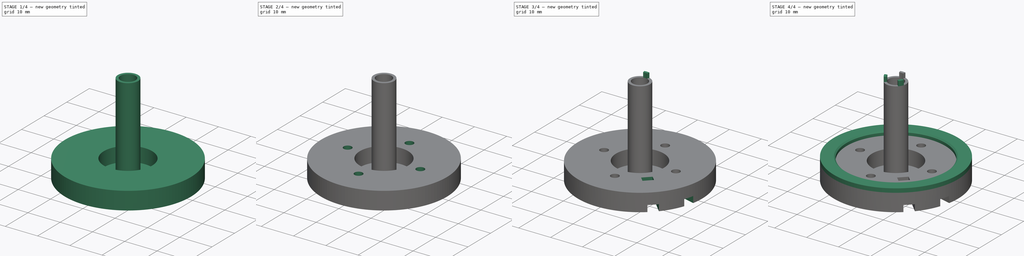
[diagram: build sequence overview — one tinted view per stage of 4, left to right]
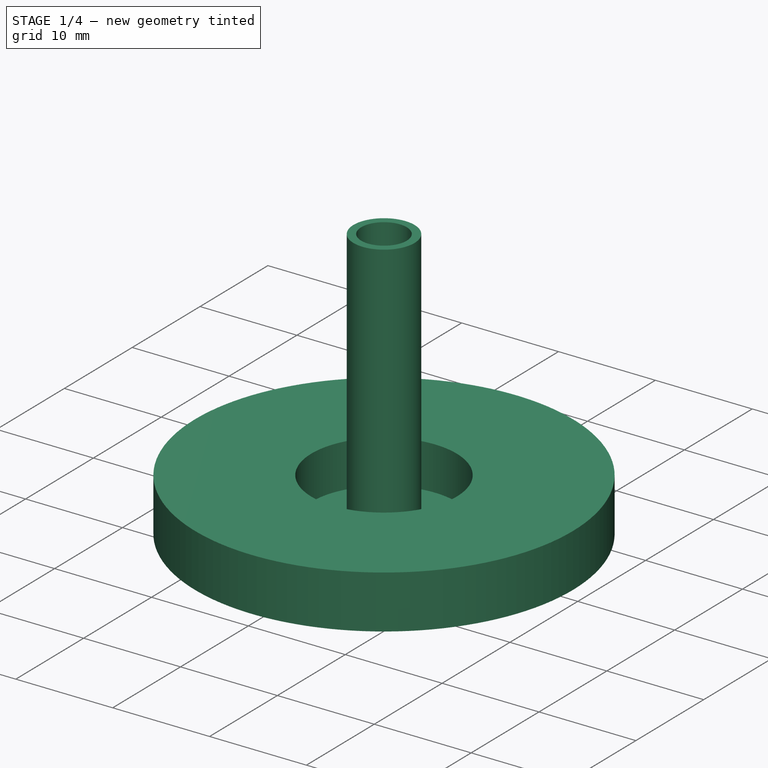
[diagram: stage 1 of 4 — iso view after this stage's code; geometry added in this stage tinted green]
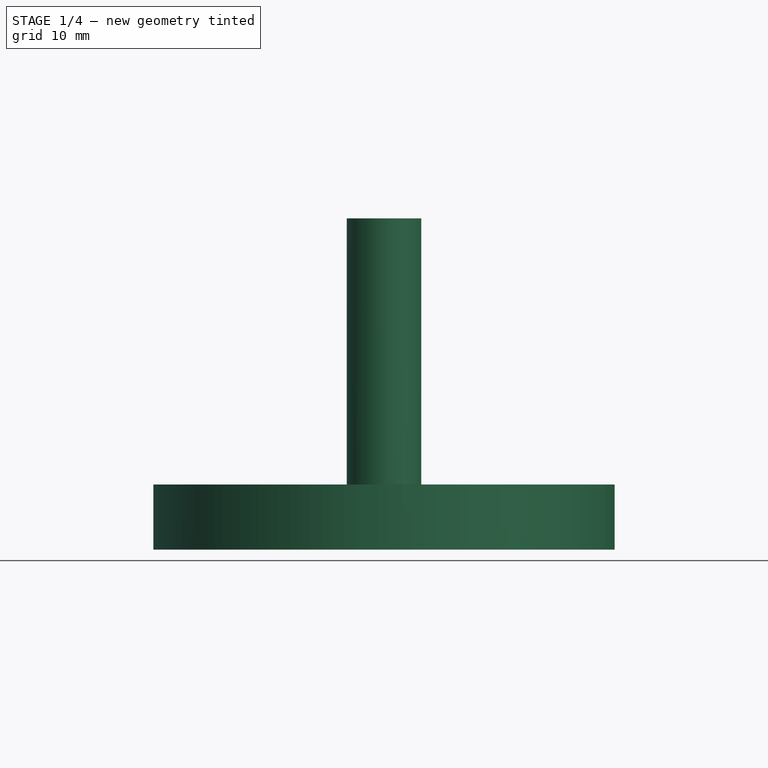
[diagram: stage 1 of 4 — front view after this stage's code; geometry added in this stage tinted green]
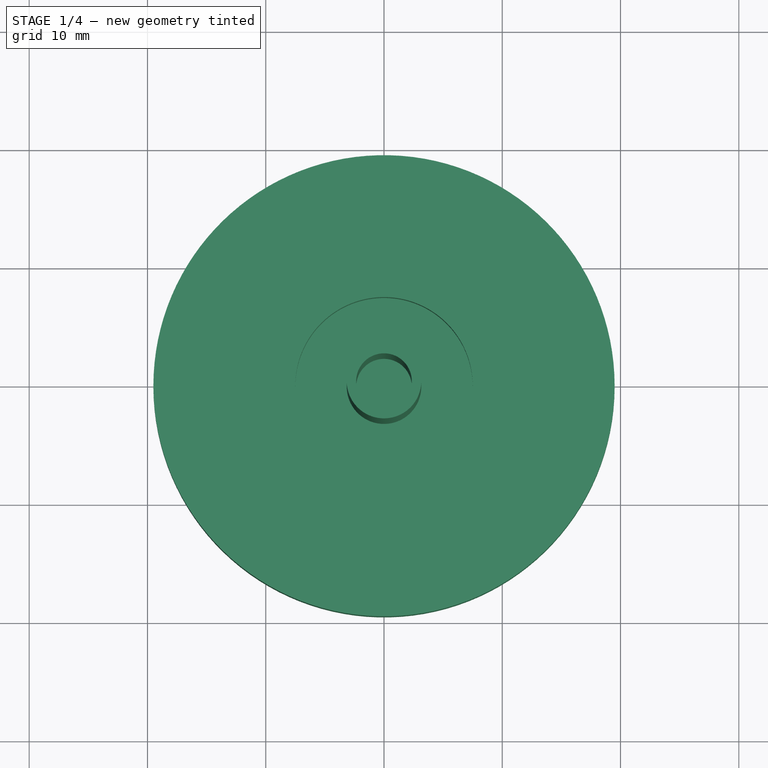
[diagram: stage 1 of 4 — top view after this stage's code; geometry added in this stage tinted green]
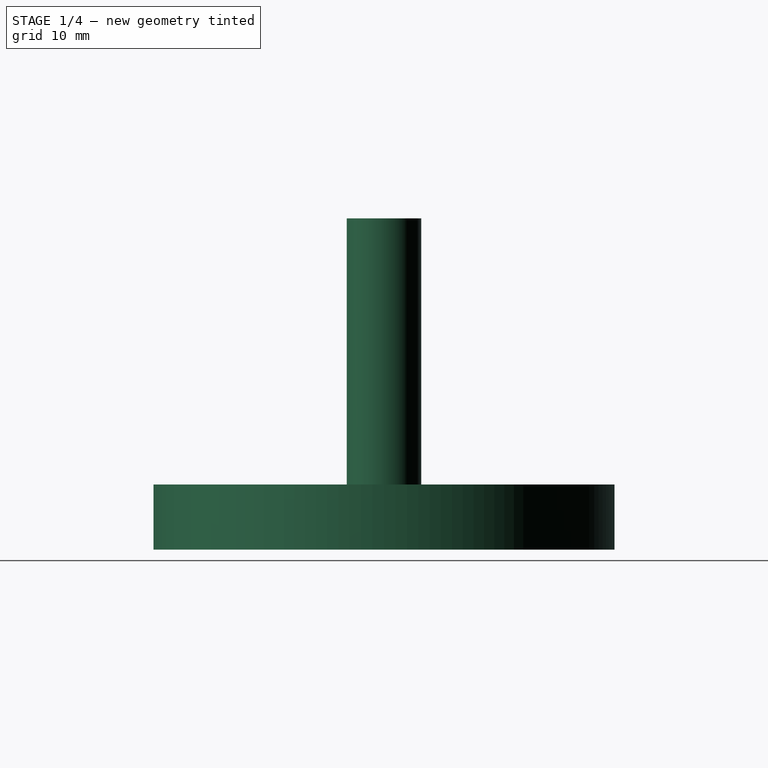
[diagram: stage 1 of 4 — right view after this stage's code; geometry added in this stage tinted green]
FCSTD DOCUMENT  (FreeCAD 0.20R29603 (Git))
Label: motor_base
License: All rights reserved
LicenseURL: http://en.wikipedia.org/wiki/All_rights_reserved
objects: Sketcher::SketchObject×8, PartDesign::Pocket×5, PartDesign::Pad×4, PartDesign::PolarPattern×2, PartDesign::Chamfer×1, PartDesign::Body×1
note: 31 computed .brp shape members not serialized (recipe doc carries the construction recipe); baked Part::Feature solids carry a one-line shape summary decoded from their .brp

FEATURE [Sketcher::SketchObject] Sketch
  FullyConstrained = true
  MapMode = 5
  Support = -> [XY_Plane]
  sketch-geometry (1):
    g0: Circle CenterX=0 CenterY=0 CenterZ=0 NormalX=0 NormalY=0 NormalZ=1 AngleXU=0 Radius=19.5
  constraints (2):
    c: Coincident(g0,g-1)
    c: Diameter(g0) = 39
FEATURE [PartDesign::Pad] Pad
  Direction = (0,0,1)
  Length = 5.5
  Length2 = 10
  Profile = -> Sketch
  ReferenceAxis = -> Sketch [N_Axis]
  Type = 0
FEATURE [Sketcher::SketchObject] Sketch001
  FullyConstrained = true
  MapMode = 5
  Placement = pos=(0,0,5.5) rot=(0,0,1;0rad)
  Support = -> [Pad]
  sketch-geometry (1):
    g0: Circle CenterX=0 CenterY=0 CenterZ=0 NormalX=0 NormalY=0 NormalZ=1 AngleXU=0 Radius=7.5
  constraints (2):
    c: Coincident(g0,g-1)
    c: Diameter(g0) = 15
FEATURE [PartDesign::Pocket] Pocket  label="磁铁槽"
  BaseFeature = -> Pad
  Direction = (0,0,-1)
  Length = 4.5
  Length2 = 5
  Profile = -> Sketch001
  ReferenceAxis = -> Sketch001 [N_Axis]
  Type = 0
FEATURE [Sketcher::SketchObject] Sketch002
  FullyConstrained = true
  MapMode = 5
  Placement = pos=(0,0,1) rot=(0,0,1;0rad)
  Support = -> [Pocket]
  sketch-geometry (4):
    g0: Circle CenterX=0 CenterY=0 CenterZ=0 NormalX=0 NormalY=0 NormalZ=1 AngleXU=0 Radius=3.15
    g1: Circle CenterX=0 CenterY=0 CenterZ=0 NormalX=0 NormalY=0 NormalZ=1 AngleXU=0 Radius=2.35
    g2: GeomPoint X=0 Y=3.15 Z=0
    g3: GeomPoint X=0 Y=2.35 Z=0
  constraints (9):
    c: Coincident(g0,g-1)
    c: Coincident(g1,g0)
    c: Diameter(g0) = 6.3
    c: PointOnObject(g2,g0)
    c: PointOnObject(g3,g1)
    c: PointOnObject(g2,g-2)
    c: PointOnObject(g3,g-2)
    c: Distance(g2,g3) = 0.8
    c: Diameter(g1) = 4.7
FEATURE [PartDesign::Pad] Pad001  label="通孔柱"
  BaseFeature = -> Pocket
  Direction = (0,0,1)
  Length = 27
  Length2 = 10
  Profile = -> Sketch002
  ReferenceAxis = -> Sketch002 [N_Axis]
  Type = 0
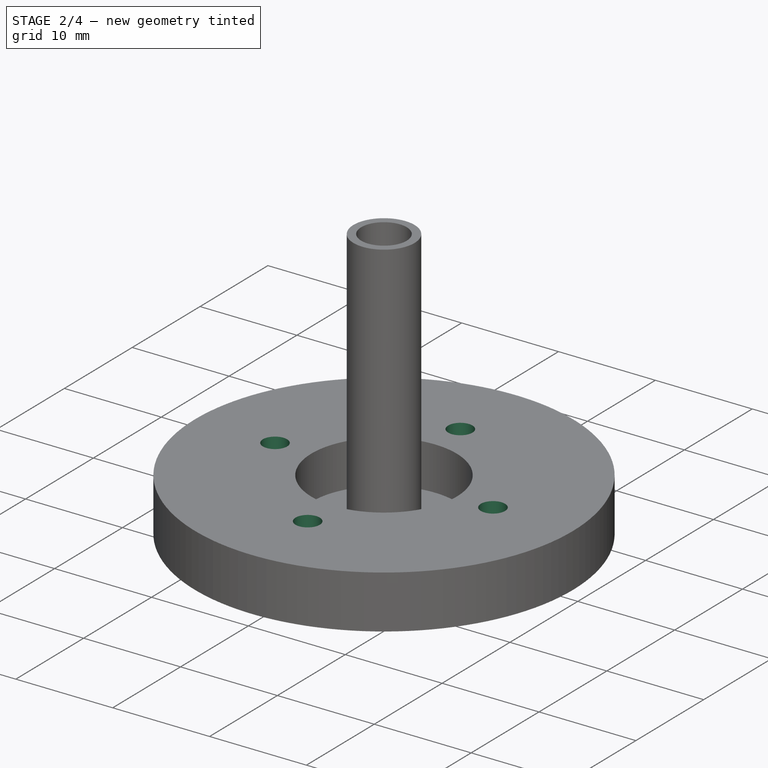
[diagram: stage 2 of 4 — iso view after this stage's code; geometry added in this stage tinted green]
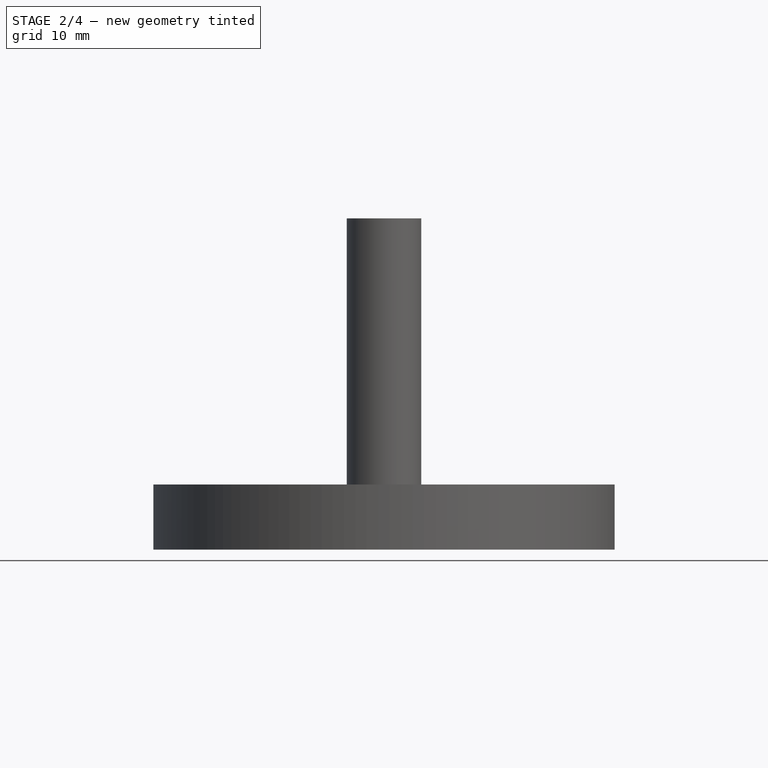
[diagram: stage 2 of 4 — front view after this stage's code; geometry added in this stage tinted green]
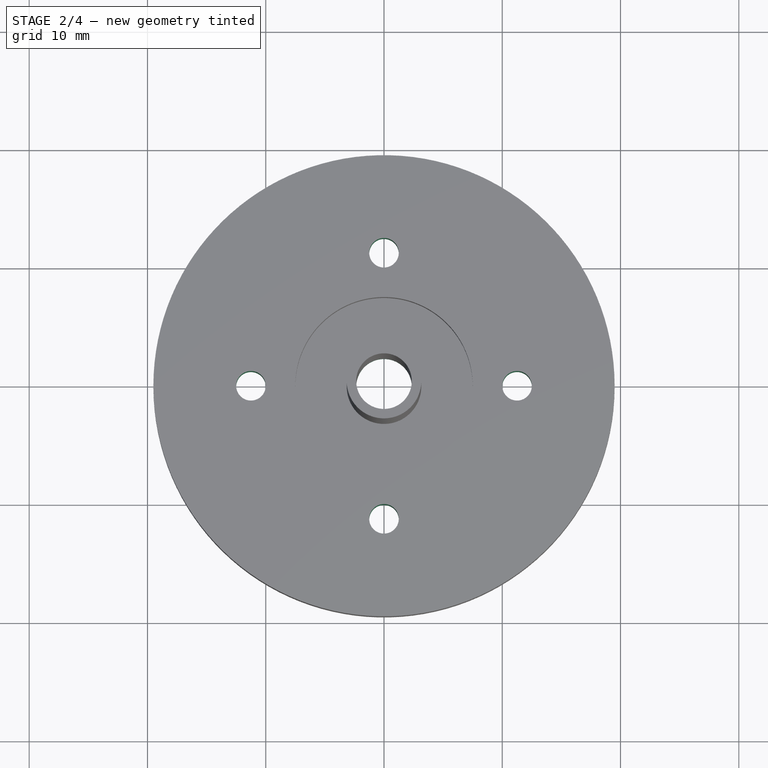
[diagram: stage 2 of 4 — top view after this stage's code; geometry added in this stage tinted green]
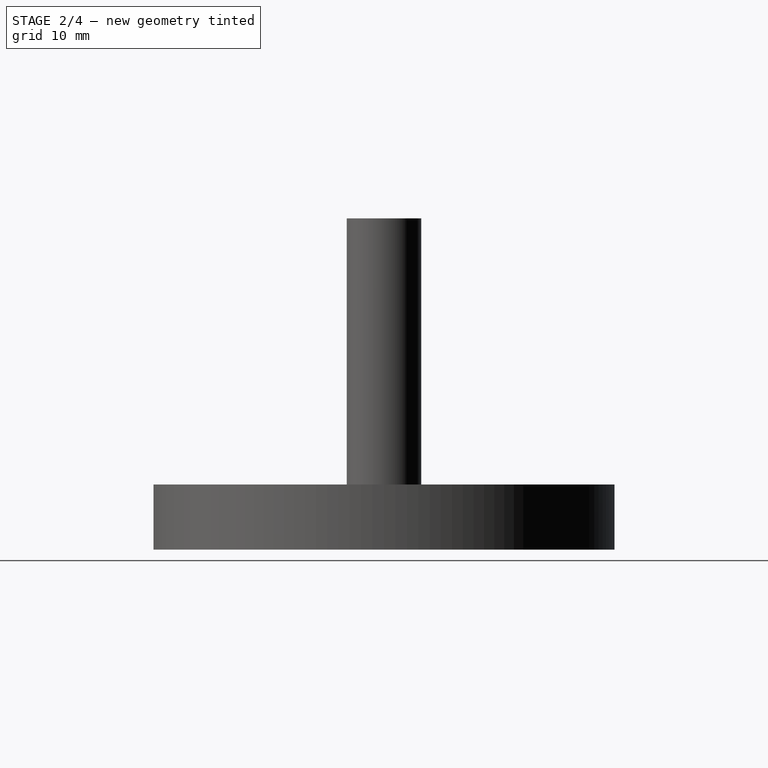
[diagram: stage 2 of 4 — right view after this stage's code; geometry added in this stage tinted green]
FEATURE [Sketcher::SketchObject] Sketch003
  FullyConstrained = true
  MapMode = 5
  Placement = pos=(0,0,0) rot=(1,0,0;3.14159rad)
  Support = -> [Pad001]
  sketch-geometry (1):
    g0: Circle CenterX=0 CenterY=11.25 CenterZ=0 NormalX=0 NormalY=0 NormalZ=1 AngleXU=0 Radius=1.25
  constraints (3):
    c: PointOnObject(g0,g-2)
    c: Diameter(g0) = 2.5
    c: Distance(g0,g-1) = 11.25
FEATURE [PartDesign::Pocket] Pocket001
  BaseFeature = -> Pad001
  Direction = (0,0,1)
  Length = 5
  Length2 = 5
  Profile = -> Sketch003
  ReferenceAxis = -> Sketch003 [N_Axis]
  Type = 1
FEATURE [PartDesign::PolarPattern] PolarPattern
  Angle = 360
  Axis = -> Sketch003 [N_Axis]
  BaseFeature = -> Pocket001
  Occurrences = 4
  Originals = -> [Pocket001]
FEATURE [PartDesign::Pocket] Pocket002
  BaseFeature = -> PolarPattern
  Direction = (0,0,-1)
  Length = 0
  Length2 = 5
  Profile = -> PolarPattern [Edge24]
  Type = 1
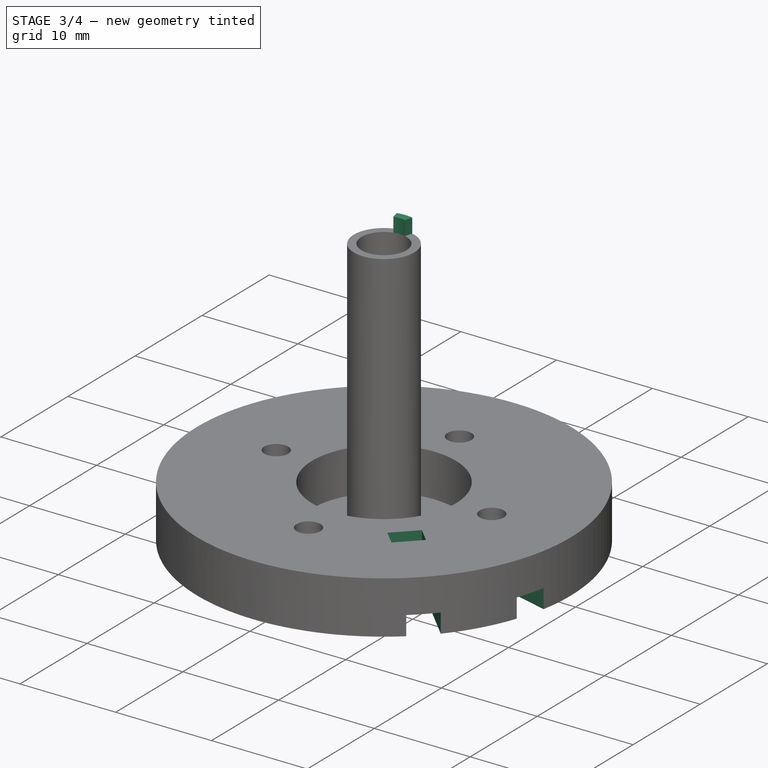
[diagram: stage 3 of 4 — iso view after this stage's code; geometry added in this stage tinted green]
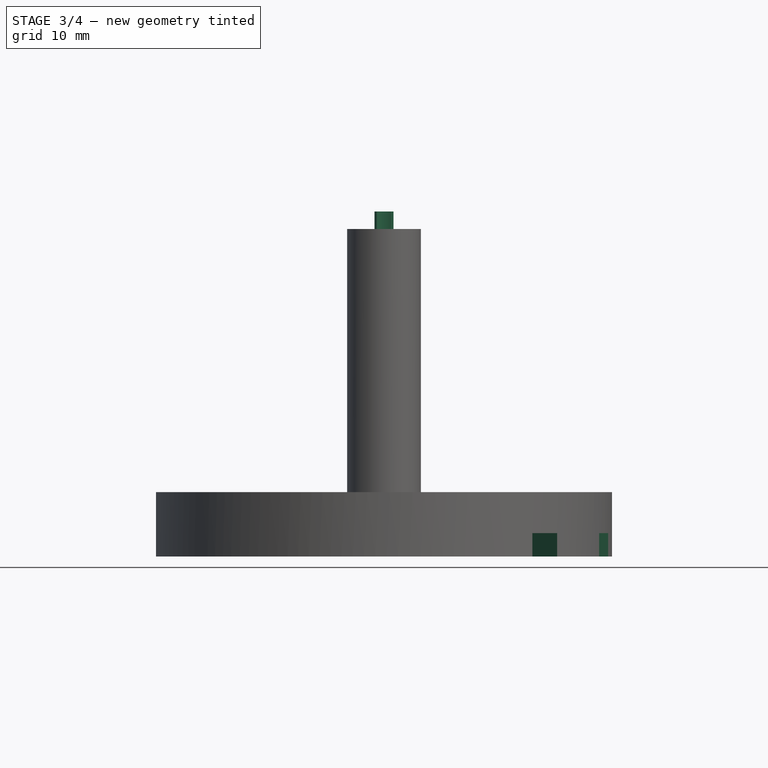
[diagram: stage 3 of 4 — front view after this stage's code; geometry added in this stage tinted green]
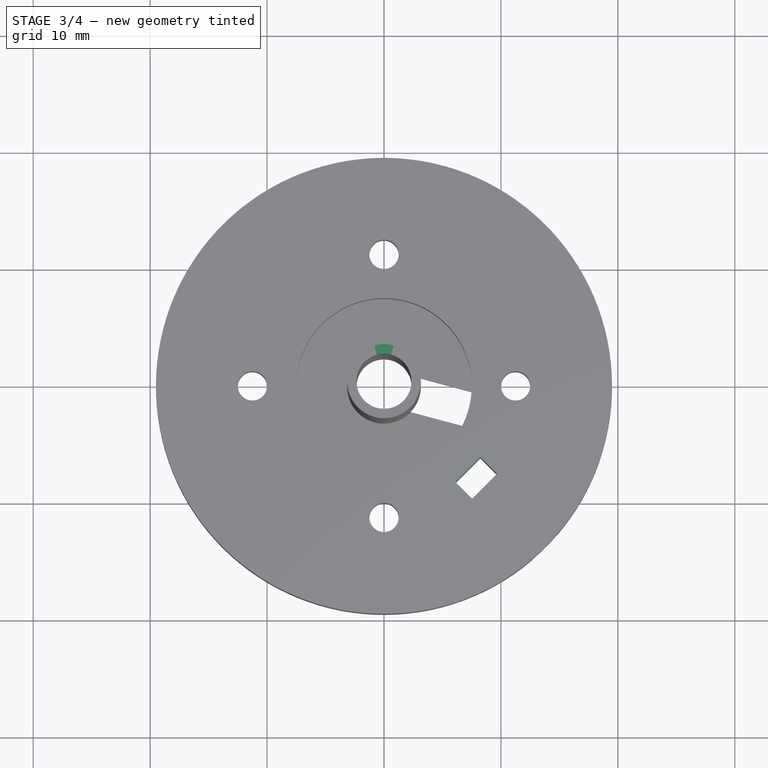
[diagram: stage 3 of 4 — top view after this stage's code; geometry added in this stage tinted green]
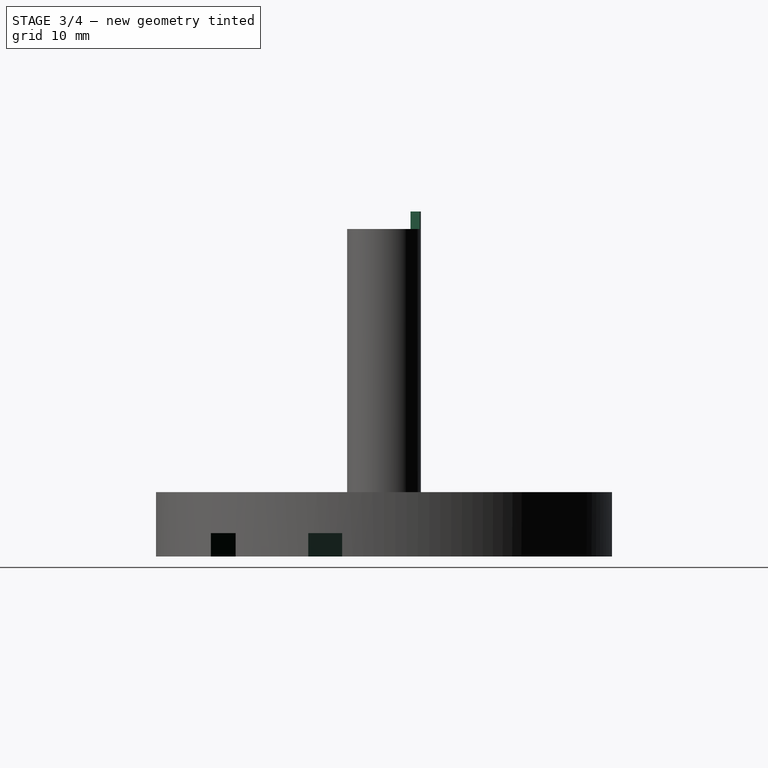
[diagram: stage 3 of 4 — right view after this stage's code; geometry added in this stage tinted green]
FEATURE [Sketcher::SketchObject] Sketch004
  FullyConstrained = false
  MapMode = 5
  Placement = pos=(0,0,0) rot=(1,0,0;3.14159rad)
  Support = -> [Pocket002]
  sketch-geometry (6):
    g0: LineSegment StartX=0 StartY=0 StartZ=0 EndX=16.3031 EndY=16.3031 EndZ=0
    g1: LineSegment StartX=6.11647 StartY=8.23779 StartZ=0 EndX=8.23779 EndY=6.11647 EndZ=0
    g2: LineSegment StartX=6.11647 StartY=8.23779 StartZ=0 EndX=7.53069 EndY=9.65201 EndZ=0
    g3: LineSegment StartX=7.53069 StartY=9.65201 StartZ=0 EndX=9.65201 EndY=7.53069 EndZ=0
    g4: LineSegment StartX=9.65201 StartY=7.53069 StartZ=0 EndX=8.23779 EndY=6.11647 EndZ=0
    g5: LineSegment StartX=6.82358 StartY=8.9449 StartZ=0 EndX=8.9449 EndY=6.82358 EndZ=0
  constraints (16):
    c: Coincident(g0,g-1)
    c: Angle(g-1,g0) = 0.785398
    c: Perpendicular(g0,g1)
    c: Coincident(g2,g1)
    c: Coincident(g3,g2)
    c: Coincident(g4,g3)
    c: Coincident(g4,g1)
    c: Parallel(g2,g4)
    c: Parallel(g4,g0)
    c: Symmetric(g3,g2,g0)
    c: PointOnObject(g5,g2)
    c: PointOnObject(g5,g4)
    c: Symmetric(g2,g1,g5)
    c: Distance(g4) = 2
    c: Distance(g1) = 3
    c: Distance(g0,g5) = 11.15
FEATURE [PartDesign::Pocket] Pocket003
  BaseFeature = -> Pocket002
  Direction = (0,0,1)
  Length = 0
  Length2 = 5
  Profile = -> Sketch004
  ReferenceAxis = -> Sketch004 [N_Axis]
  Type = 3
  UpToFace = -> Pocket002 [Face3]
FEATURE [Sketcher::SketchObject] Sketch005
  ExternalGeometry = -> [Pocket003]
  FullyConstrained = true
  MapMode = 5
  Placement = pos=(0,0,0) rot=(1,0,0;3.14159rad)
  Support = -> [Pocket003]
  sketch-geometry (9):
    g0: LineSegment StartX=0 StartY=0 StartZ=0 EndX=18.8356 EndY=5.04697 EndZ=0
    g1: LineSegment StartX=2.13559 StartY=-0.980684 StartZ=0 EndX=19.2238 EndY=3.59808 EndZ=0
    g2: LineSegment StartX=18.4473 StartY=6.49586 StartZ=0 EndX=1.35914 EndY=1.91709 EndZ=0
    g3: LineSegment StartX=1.35914 StartY=1.91709 StartZ=0 EndX=2.13559 EndY=-0.980684 EndZ=0
    g4: LineSegment StartX=18.4473 StartY=6.49586 StartZ=0 EndX=19.2238 EndY=3.59808 EndZ=0
    g5: LineSegment StartX=6.11647 StartY=8.23779 StartZ=0 EndX=12.7279 EndY=14.8492 EndZ=0
    g6: LineSegment StartX=8.23779 StartY=6.11647 StartZ=0 EndX=14.8492 EndY=12.7279 EndZ=0
    g7: LineSegment StartX=12.7279 StartY=14.8492 StartZ=0 EndX=14.8492 EndY=12.7279 EndZ=0
    g8: LineSegment StartX=6.11647 StartY=8.23779 StartZ=0 EndX=8.23779 EndY=6.11647 EndZ=0
  constraints (23):
    c: Coincident(g0,g-1)
    c: Angle(g0,g-1) = -0.261799
    c: Parallel(g2,g1)
    c: Symmetric(g2,g1,g0)
    c: Coincident(g3,g2)
    c: Coincident(g3,g1)
    c: Coincident(g4,g2)
    c: Coincident(g4,g1)
    c: Symmetric(g2,g1,g0)
    c: Distance(g3) = 3
    c: PointOnObject(g0,g4)
    c: PointOnObject(g0,g-3)
    c: Coincident(g5,g-4)
    c: Coincident(g6,g-4)
    c: Coincident(g7,g5)
    c: Coincident(g7,g6)
    c: Perpendicular(g-4,g6)
    c: Perpendicular(g-4,g5)
    c: Parallel(g7,g-4)
    c: Coincident(g8,g5)
    c: Coincident(g8,g6)
    c: Tangent(g7,g-3)
    c: PointOnObject(g2,g-5)
FEATURE [PartDesign::Pocket] Pocket004
  BaseFeature = -> Pocket003
  Direction = (0,0,1)
  Length = 2
  Length2 = 5
  Profile = -> Sketch005
  ReferenceAxis = -> Sketch005 [N_Axis]
  Type = 0
FEATURE [Sketcher::SketchObject] Sketch006
  ExternalGeometry = -> [Pocket004]
  FullyConstrained = true
  Placement = pos=(0,0,28) rot=(0,0,1;0rad)
  Support = -> [Sketch002]
  sketch-geometry (6):
    g0: ArcOfCircle CenterX=0 CenterY=0 CenterZ=0 NormalX=0 NormalY=0 NormalZ=1 AngleXU=0 Radius=2.35 StartAngle=1.309 EndAngle=1.8326
    g1: ArcOfCircle CenterX=0 CenterY=0 CenterZ=0 NormalX=0 NormalY=0 NormalZ=1 AngleXU=0 Radius=3.15 StartAngle=1.309 EndAngle=1.8326
    g2: LineSegment StartX=0 StartY=0 StartZ=0 EndX=-0.608225 EndY=2.26993 EndZ=0
    g3: LineSegment StartX=0 StartY=0 StartZ=0 EndX=0.608225 EndY=2.26993 EndZ=0
    g4: LineSegment StartX=-0.608225 StartY=2.26993 StartZ=0 EndX=-0.81528 EndY=3.04267 EndZ=0
    g5: LineSegment StartX=0.608225 StartY=2.26993 StartZ=0 EndX=0.81528 EndY=3.04267 EndZ=0
  constraints (16):
    c: Coincident(g0,g-1)
    c: Coincident(g1,g0)
    c: Coincident(g2,g0)
    c: Coincident(g2,g0)
    c: Coincident(g3,g0)
    c: Coincident(g3,g0)
    c: PointOnObject(g1,g3)
    c: PointOnObject(g1,g2)
    c: Coincident(g4,g0)
    c: Coincident(g4,g1)
    c: Coincident(g5,g0)
    c: Coincident(g5,g1)
    c: Symmetric(g0,g0,g-2)
    c: Angle(g-2,g2) = 0.261799
    c: Equal(g0,g-4)
    c: Equal(g-3,g1)
FEATURE [PartDesign::Pad] Pad002
  BaseFeature = -> Pocket004
  Direction = (0,0,1)
  Length = 1.5
  Length2 = 10
  Profile = -> Sketch006
  ReferenceAxis = -> Sketch006 [N_Axis]
  Type = 0
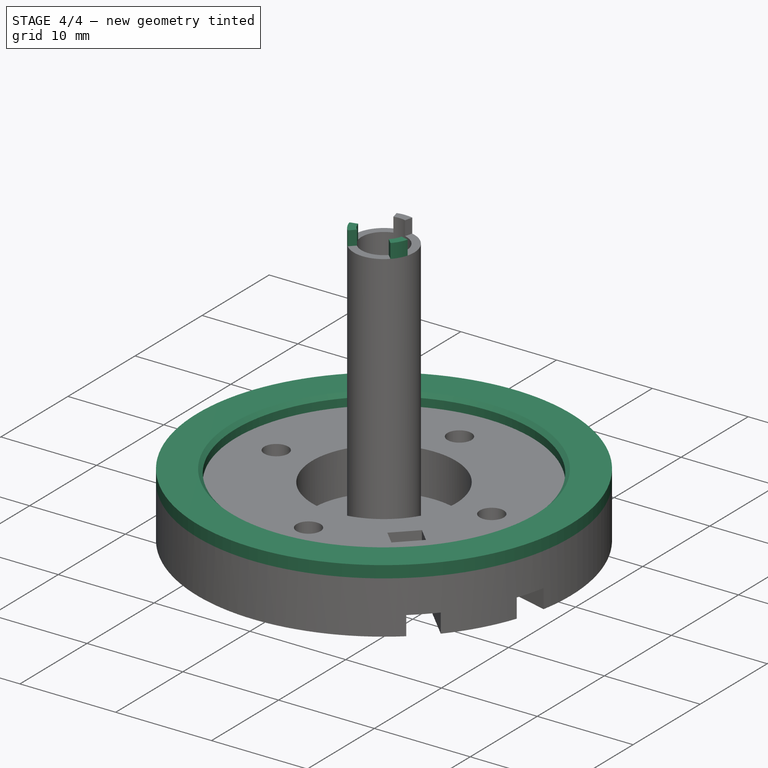
[diagram: stage 4 of 4 — iso view after this stage's code; geometry added in this stage tinted green]
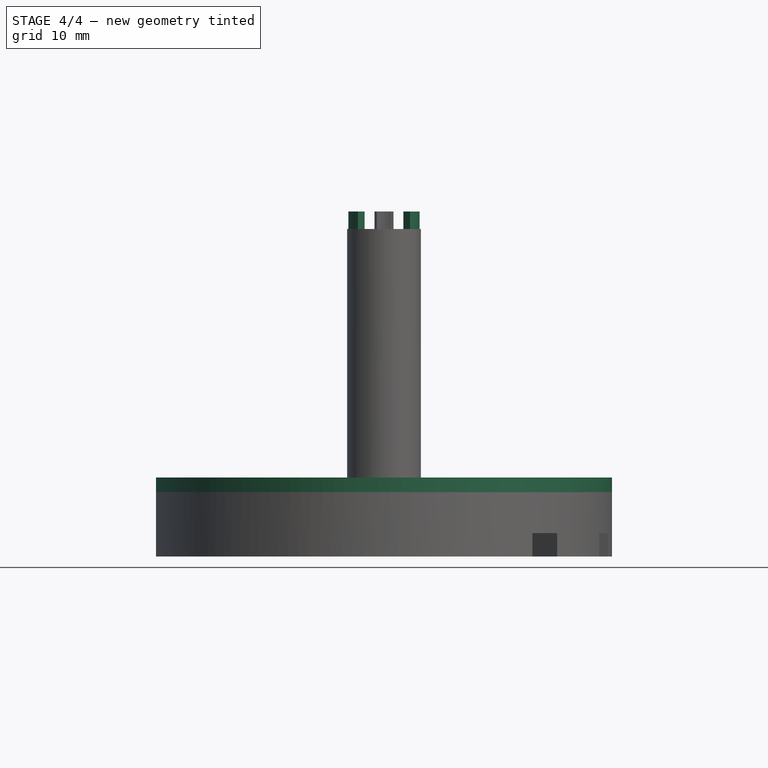
[diagram: stage 4 of 4 — front view after this stage's code; geometry added in this stage tinted green]
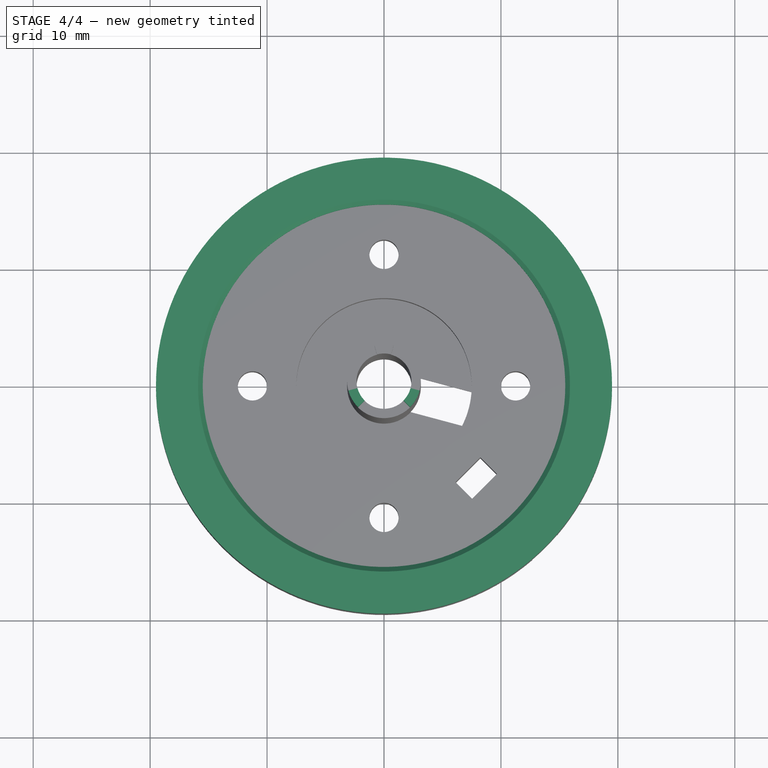
[diagram: stage 4 of 4 — top view after this stage's code; geometry added in this stage tinted green]
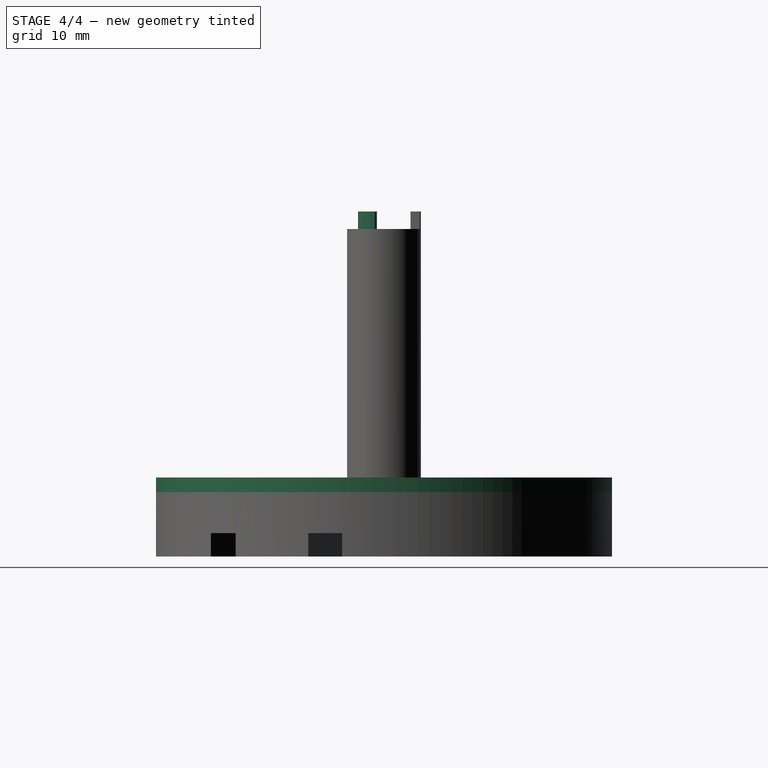
[diagram: stage 4 of 4 — right view after this stage's code; geometry added in this stage tinted green]
FEATURE [PartDesign::PolarPattern] PolarPattern001
  Angle = 360
  Axis = -> Sketch006 [N_Axis]
  BaseFeature = -> Pad002
  Occurrences = 3
  Originals = -> [Pad002]
FEATURE [Sketcher::SketchObject] Sketch007
  FullyConstrained = true
  MapMode = 5
  Placement = pos=(0,0,5.5) rot=(0,0,1;0rad)
  Support = -> [PolarPattern001]
  sketch-geometry (2):
    g0: Circle CenterX=0 CenterY=0 CenterZ=0 NormalX=0 NormalY=0 NormalZ=1 AngleXU=0 Radius=15.5
    g1: Circle CenterX=0 CenterY=0 CenterZ=0 NormalX=0 NormalY=0 NormalZ=1 AngleXU=0 Radius=19.5
  constraints (4):
    c: Coincident(g0,g-1)
    c: Diameter(g0) = 31
    c: Coincident(g1,g0)
    c: Diameter(g1) = 39
FEATURE [PartDesign::Pad] Pad003
  BaseFeature = -> PolarPattern001
  Direction = (0,0,1)
  Length = 1.25
  Length2 = 10
  Profile = -> Sketch007
  ReferenceAxis = -> Sketch007 [N_Axis]
  Type = 0
FEATURE [PartDesign::Chamfer] Chamfer
  Angle = 45
  Base = -> Pad003 [Edge48]
  BaseFeature = -> Pad003
  ChamferType = 0
  FlipDirection = false
  Size = 0.4
  Size2 = 1
  SupportTransform = false
  UseAllEdges = false
FEATURE [PartDesign::Body] Body
  Group = -> [Sketch,Pad,Sketch001,Pocket,Sketch002,Pad001,Sketch003,Pocket001,PolarPattern,Pocket002,Sketch004,Pocket003,Sketch005,Pocket004,Sketch006,Pad002,PolarPattern001,Sketch007,Pad003,Chamfer]
  Origin = -> Origin
  Tip = -> Chamfer
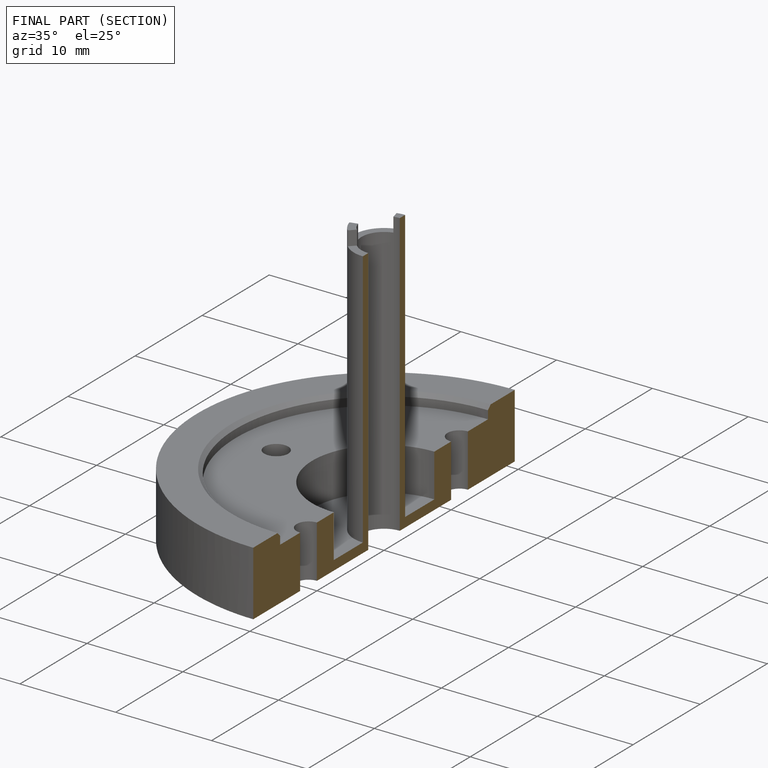
[diagram: finished part — half-section view (interior)]
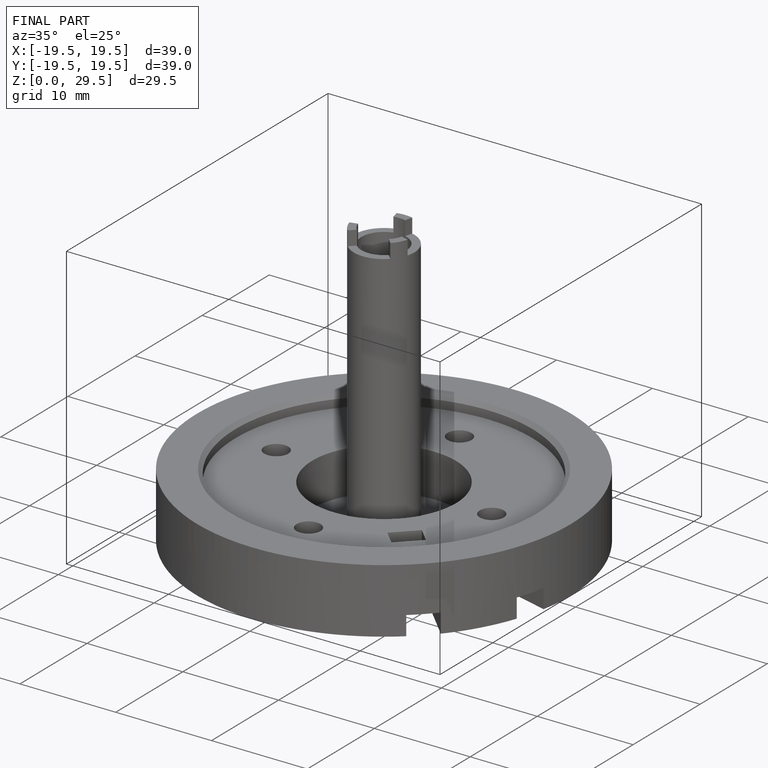
[diagram: finished part — iso view with bounding-box wireframe]
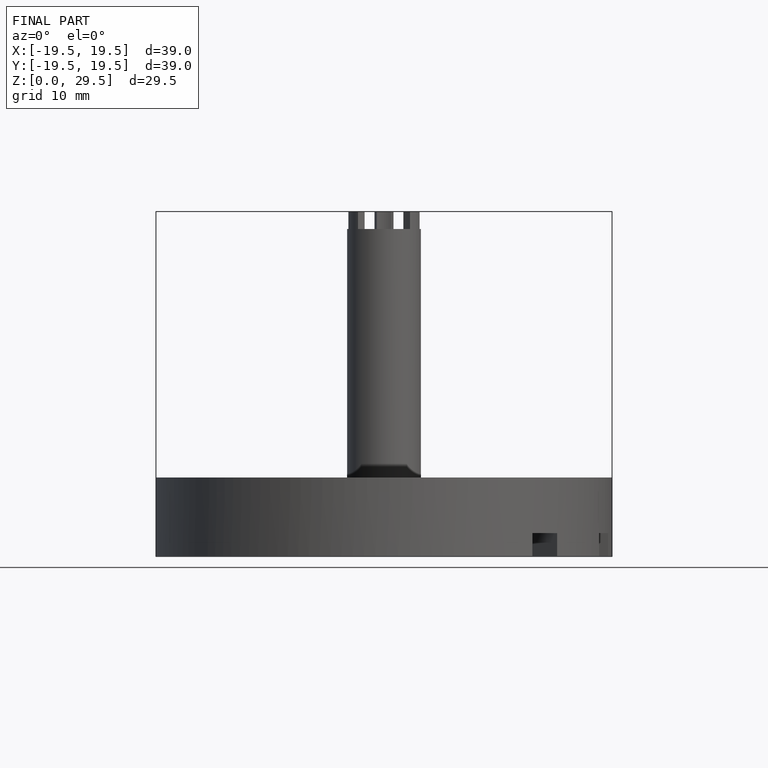
[diagram: finished part — front view with bounding-box wireframe]
